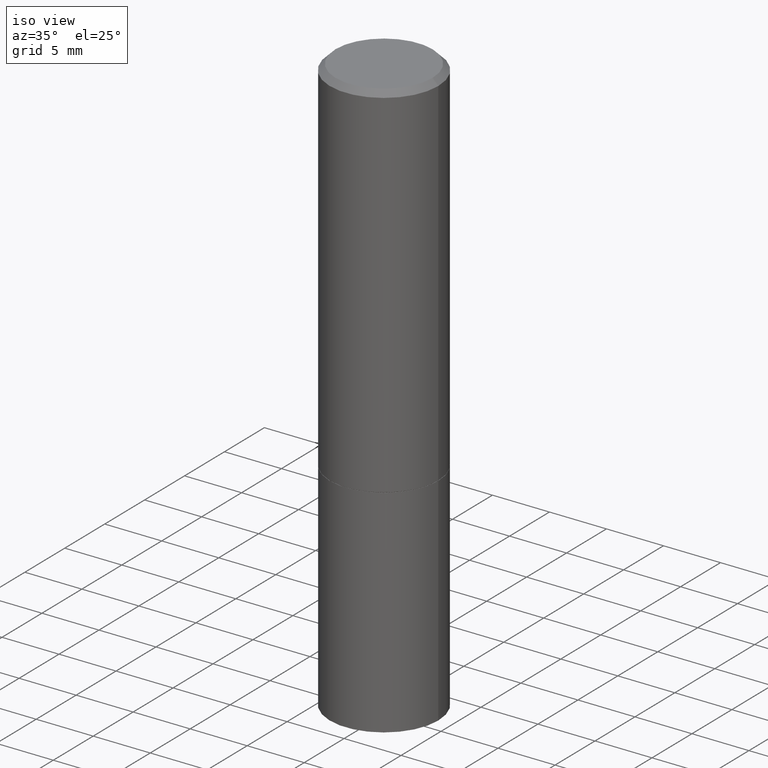
[diagram: clean part render]
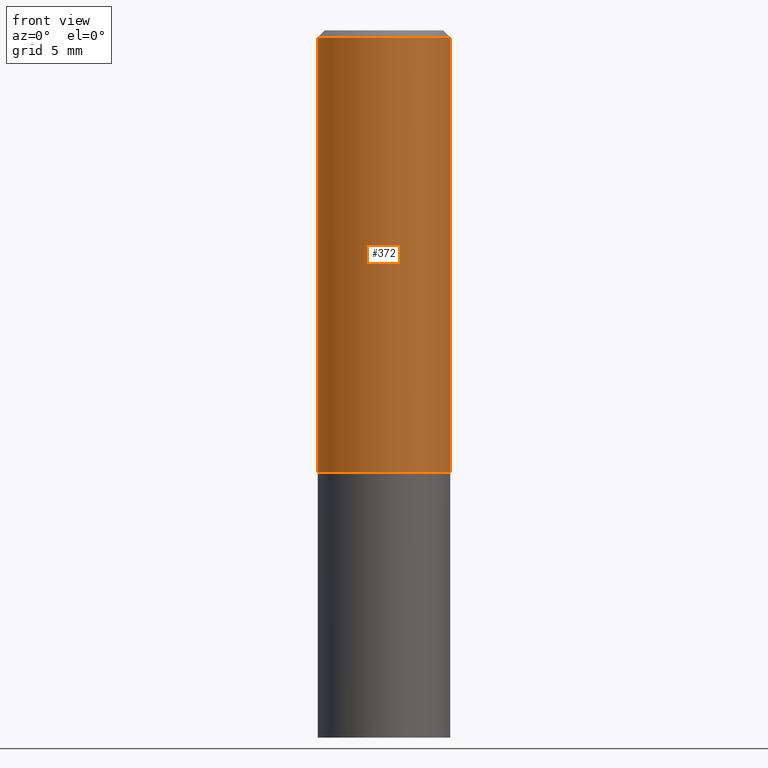
[diagram: tour spotlight — one face highlighted and labeled with its STEP entity id]
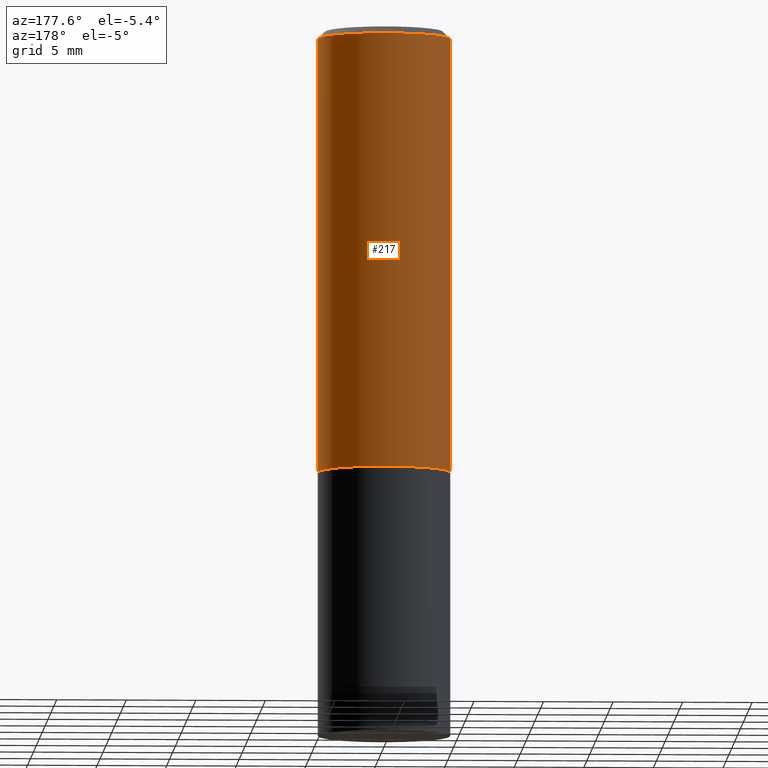
[diagram: tour spotlight — one face highlighted and labeled with its STEP entity id]
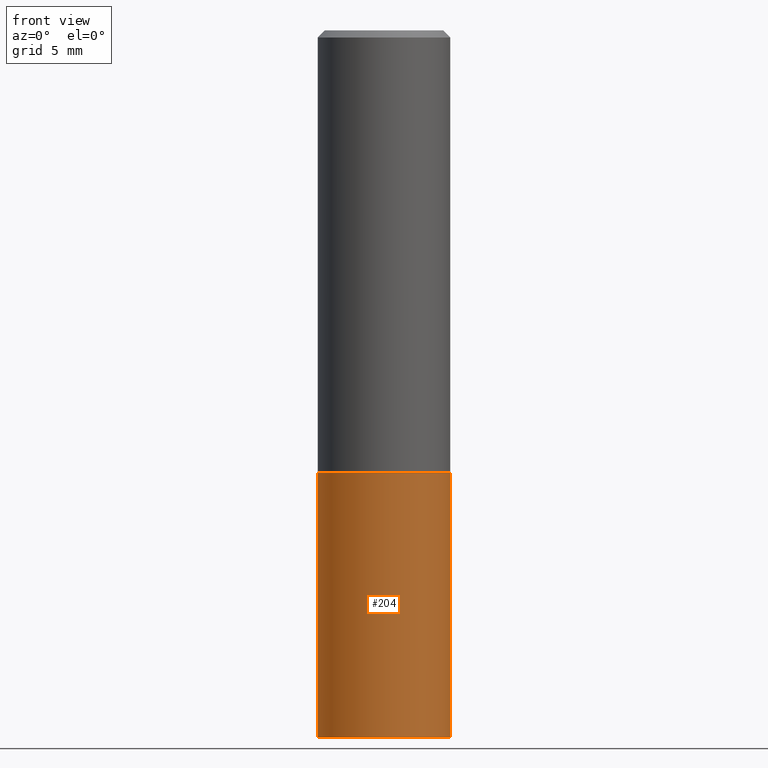
[diagram: tour spotlight — one face highlighted and labeled with its STEP entity id]
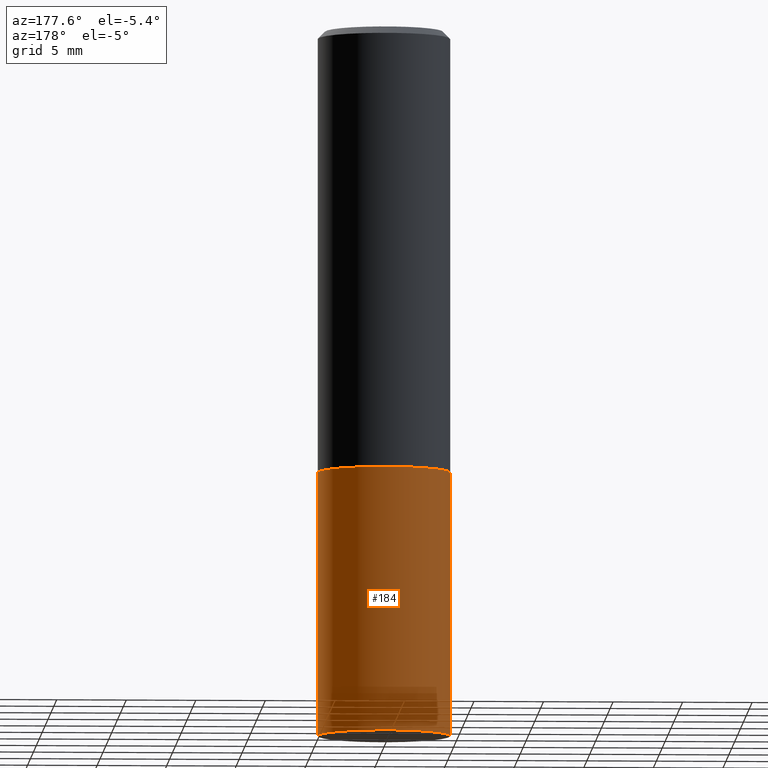
[diagram: tour spotlight — one face highlighted and labeled with its STEP entity id]
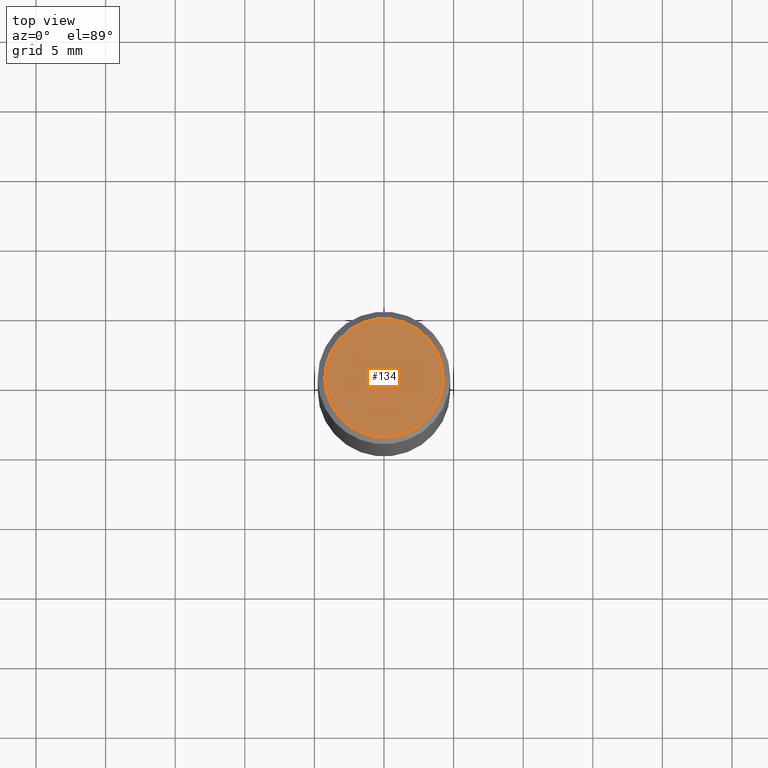
[diagram: tour spotlight — one face highlighted and labeled with its STEP entity id]
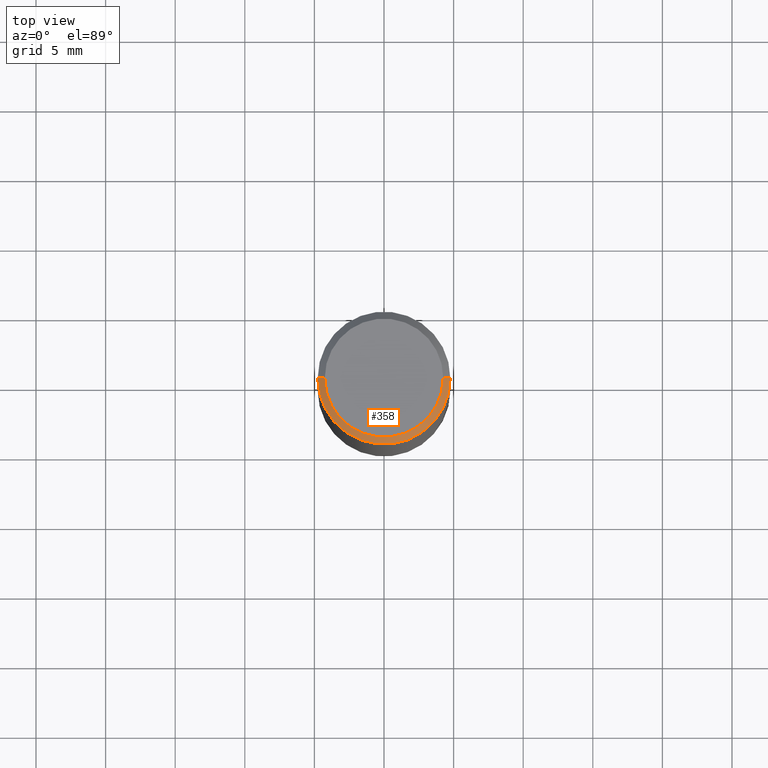
[diagram: tour spotlight — one face highlighted and labeled with its STEP entity id]
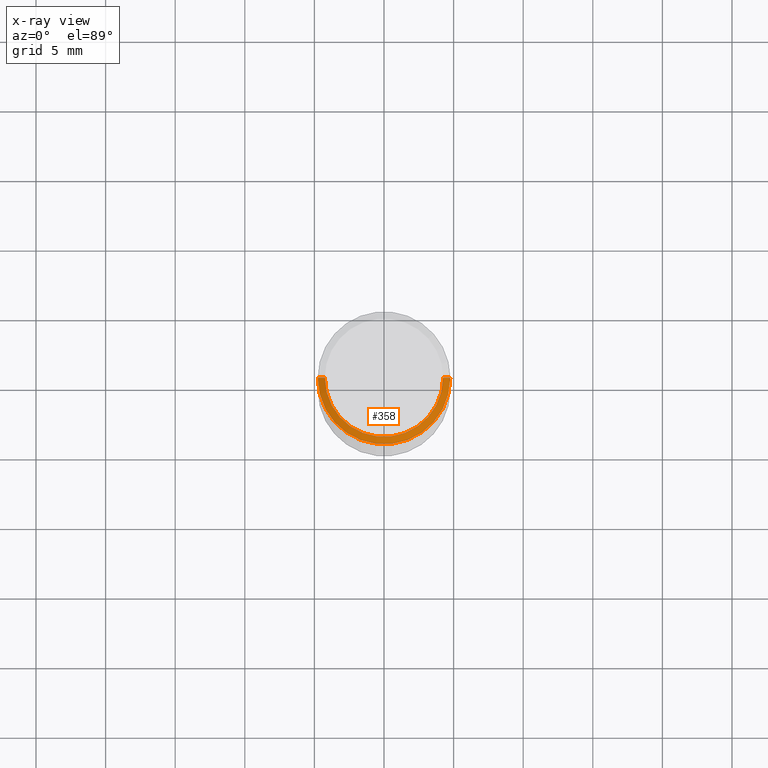
[diagram: x-ray of the same camera — body ghosted, this tour face saturated]
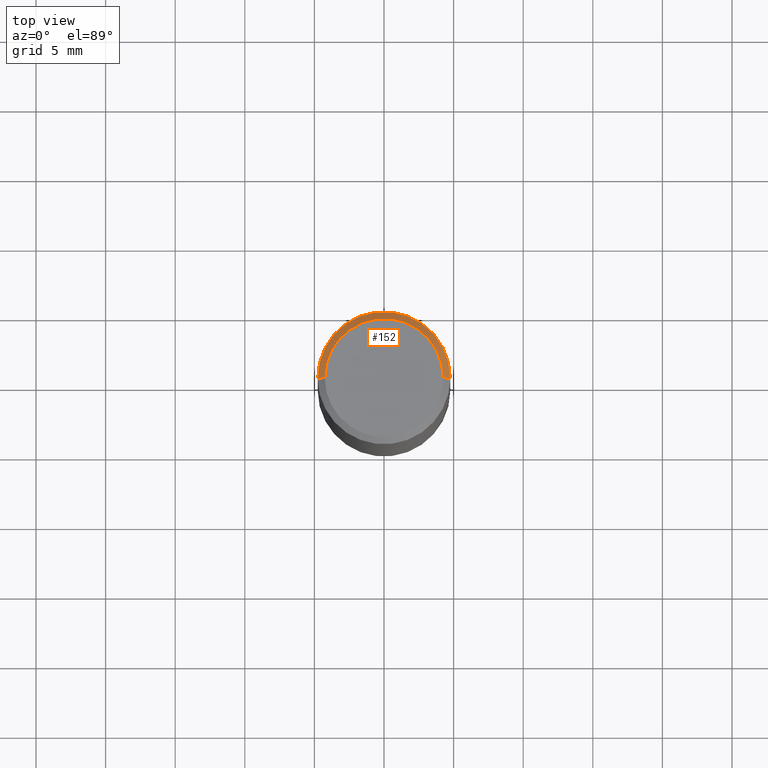
[diagram: tour spotlight — one face highlighted and labeled with its STEP entity id]
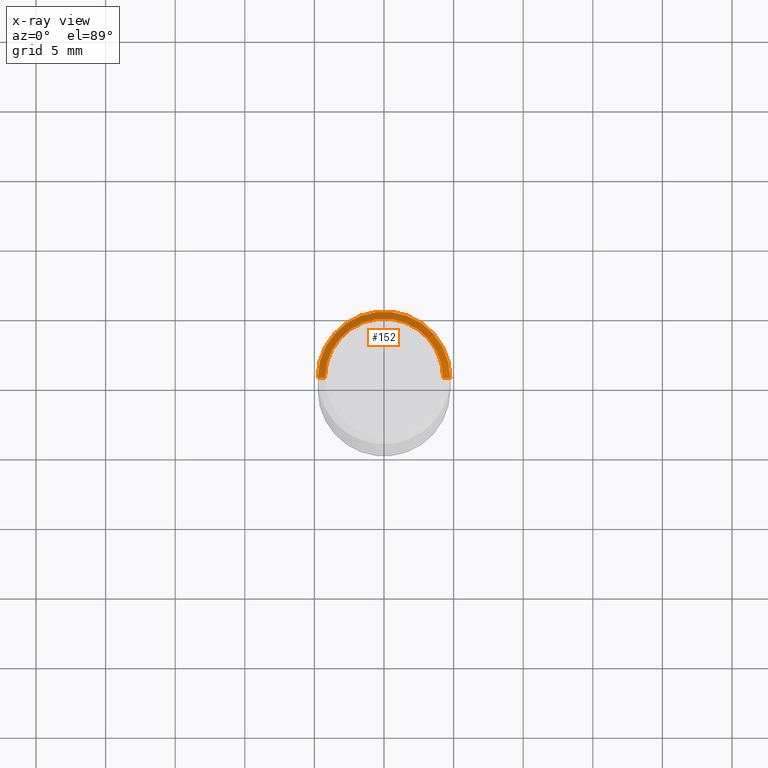
[diagram: x-ray of the same camera — body ghosted, this tour face saturated]
A machine part: a face-by-face anatomy tour. The part has 13 B-rep faces; the first image is the clean iso view, then the 7 largest visible faces are spotlighted one at a time (largest first), each with its STEP entity span.

Face 1 — front view, entity #372. In plain terms, the highlighted cylindrical surface (partial cylindrical patch) has radius 4.7625 mm, axis along (-0, 0, 1).
Definition (entity closure, byte-faithful):
#3 = DIRECTION ( 'NONE',  ( -2.445468806185136877E-29, 3.491481338843145188E-15, 1.000000000000000000 ) ) ;
#18 = VERTEX_POINT ( 'NONE', #325 ) ;
#19 = ORIENTED_EDGE ( 'NONE', *, *, #135, .T. ) ;
#50 = CYLINDRICAL_SURFACE ( 'NONE', #346, 0.1874999999999999722 ) ;
#52 = VERTEX_POINT ( 'NONE', #355 ) ;
#53 = EDGE_CURVE ( 'NONE', #226, #18, #216, .T. ) ;
#74 = FACE_OUTER_BOUND ( 'NONE', #308, .T. ) ;
#85 = EDGE_CURVE ( 'NONE', #18, #141, #166, .T. ) ;
#90 = VECTOR ( 'NONE', #3, 39.37007874015748143 ) ;
#96 = ORIENTED_EDGE ( 'NONE', *, *, #53, .F. ) ;
#97 = DIRECTION ( 'NONE',  ( -2.445468806185136597E-29, 3.491481338843145583E-15, 1.000000000000000000 ) ) ;
#135 = EDGE_CURVE ( 'NONE', #226, #52, #194, .T. ) ;
#141 = VERTEX_POINT ( 'NONE', #231 ) ;
#151 = AXIS2_PLACEMENT_3D ( 'NONE', #263, #97, #311 ) ;
#158 = CARTESIAN_POINT ( 'NONE',  ( 4.890937612370279289E-31, -6.982962677686299005E-17, -0.02000000000000002470 ) ) ;
#159 = CARTESIAN_POINT ( 'NONE',  ( -0.1875000000000000278, -8.865687612846302579E-16, -1.250999999999999890 ) ) ;
#166 = CIRCLE ( 'NONE', #390, 0.1874999999999999445 ) ;
#176 = CARTESIAN_POINT ( 'NONE',  ( -0.1874999999999999722, 1.332267629550187651E-15, -9.223003294227946589E-30 ) ) ;
#194 = CIRCLE ( 'NONE', #151, 0.1875000000000000278 ) ;
#196 = DIRECTION ( 'NONE',  ( -2.445468806185136597E-29, 3.491481338843145583E-15, 1.000000000000000000 ) ) ;
#210 = DIRECTION ( 'NONE',  ( 1.000000000000000000, -6.982962677686266711E-15, 4.876176775795935793E-29 ) ) ;
#216 = LINE ( 'NONE', #176, #354 ) ;
#226 = VERTEX_POINT ( 'NONE', #159 ) ;
#227 = CARTESIAN_POINT ( 'NONE',  ( 0.1874999999999999722, -1.309305502066174811E-15, 9.142831454617378210E-30 ) ) ;
#229 = LINE ( 'NONE', #227, #90 ) ;
#230 = EDGE_CURVE ( 'NONE', #52, #141, #229, .T. ) ;
#231 = CARTESIAN_POINT ( 'NONE',  ( 0.1874999999999999445, -1.356173001359024874E-15, -0.02000000000000002470 ) ) ;
#240 = DIRECTION ( 'NONE',  ( -2.445468806185136877E-29, 3.491481338843145188E-15, 1.000000000000000000 ) ) ;
#256 = ORIENTED_EDGE ( 'NONE', *, *, #230, .T. ) ;
#263 = CARTESIAN_POINT ( 'NONE',  ( 3.059281476537605228E-29, -4.367843154892774690E-15, -1.250999999999999890 ) ) ;
#267 = DIRECTION ( 'NONE',  ( -2.445468806185136597E-29, 3.491481338843145583E-15, 1.000000000000000000 ) ) ;
#280 = ORIENTED_EDGE ( 'NONE', *, *, #85, .F. ) ;
#284 = DIRECTION ( 'NONE',  ( 1.000000000000000000, -6.982962677686266711E-15, 0.000000000000000000 ) ) ;
#308 = EDGE_LOOP ( 'NONE', ( #96, #19, #256, #280 ) ) ;
#311 = DIRECTION ( 'NONE',  ( 1.000000000000000000, -6.982962677686266711E-15, 0.000000000000000000 ) ) ;
#324 = CARTESIAN_POINT ( 'NONE',  ( 0.000000000000000000, 0.000000000000000000, 0.000000000000000000 ) ) ;
#325 = CARTESIAN_POINT ( 'NONE',  ( -0.1874999999999999445, 1.239475875289311513E-15, -0.02000000000000002470 ) ) ;
#346 = AXIS2_PLACEMENT_3D ( 'NONE', #324, #267, #210 ) ;
#354 = VECTOR ( 'NONE', #240, 39.37007874015748143 ) ;
#355 = CARTESIAN_POINT ( 'NONE',  ( 0.1875000000000000278, -5.677148656958949698E-15, -1.250999999999999890 ) ) ;
#372 = ADVANCED_FACE ( 'NONE', ( #74 ), #50, .T. ) ;
#390 = AXIS2_PLACEMENT_3D ( 'NONE', #158, #196, #284 ) ;

Face 2 — auxiliary view, entity #217. In plain terms, the highlighted cylindrical surface (partial cylindrical patch) has radius 4.7625 mm, axis along (-0, 0, 1).
Definition (entity closure, byte-faithful):
#3 = DIRECTION ( 'NONE',  ( -2.445468806185136877E-29, 3.491481338843145188E-15, 1.000000000000000000 ) ) ;
#6 = CYLINDRICAL_SURFACE ( 'NONE', #44, 0.1874999999999999722 ) ;
#10 = DIRECTION ( 'NONE',  ( 1.000000000000000000, -6.982962677686266711E-15, 0.000000000000000000 ) ) ;
#18 = VERTEX_POINT ( 'NONE', #325 ) ;
#22 = EDGE_CURVE ( 'NONE', #52, #226, #81, .T. ) ;
#44 = AXIS2_PLACEMENT_3D ( 'NONE', #121, #91, #92 ) ;
#52 = VERTEX_POINT ( 'NONE', #355 ) ;
#53 = EDGE_CURVE ( 'NONE', #226, #18, #216, .T. ) ;
#65 = DIRECTION ( 'NONE',  ( -2.445468806185136597E-29, 3.491481338843145583E-15, 1.000000000000000000 ) ) ;
#81 = CIRCLE ( 'NONE', #128, 0.1875000000000000278 ) ;
#90 = VECTOR ( 'NONE', #3, 39.37007874015748143 ) ;
#91 = DIRECTION ( 'NONE',  ( -2.445468806185136597E-29, 3.491481338843145583E-15, 1.000000000000000000 ) ) ;
#92 = DIRECTION ( 'NONE',  ( 1.000000000000000000, -6.982962677686266711E-15, 4.876176775795935793E-29 ) ) ;
#94 = CIRCLE ( 'NONE', #369, 0.1874999999999999445 ) ;
#111 = CARTESIAN_POINT ( 'NONE',  ( 3.059281476537605228E-29, -4.367843154892774690E-15, -1.250999999999999890 ) ) ;
#120 = ORIENTED_EDGE ( 'NONE', *, *, #165, .F. ) ;
#121 = CARTESIAN_POINT ( 'NONE',  ( 0.000000000000000000, 0.000000000000000000, 0.000000000000000000 ) ) ;
#128 = AXIS2_PLACEMENT_3D ( 'NONE', #111, #235, #349 ) ;
#141 = VERTEX_POINT ( 'NONE', #231 ) ;
#159 = CARTESIAN_POINT ( 'NONE',  ( -0.1875000000000000278, -8.865687612846302579E-16, -1.250999999999999890 ) ) ;
#164 = CARTESIAN_POINT ( 'NONE',  ( 4.890937612370279289E-31, -6.982962677686299005E-17, -0.02000000000000002470 ) ) ;
#165 = EDGE_CURVE ( 'NONE', #141, #18, #94, .T. ) ;
#176 = CARTESIAN_POINT ( 'NONE',  ( -0.1874999999999999722, 1.332267629550187651E-15, -9.223003294227946589E-30 ) ) ;
#211 = ORIENTED_EDGE ( 'NONE', *, *, #22, .T. ) ;
#216 = LINE ( 'NONE', #176, #354 ) ;
#217 = ADVANCED_FACE ( 'NONE', ( #289 ), #6, .T. ) ;
#226 = VERTEX_POINT ( 'NONE', #159 ) ;
#227 = CARTESIAN_POINT ( 'NONE',  ( 0.1874999999999999722, -1.309305502066174811E-15, 9.142831454617378210E-30 ) ) ;
#229 = LINE ( 'NONE', #227, #90 ) ;
#230 = EDGE_CURVE ( 'NONE', #52, #141, #229, .T. ) ;
#231 = CARTESIAN_POINT ( 'NONE',  ( 0.1874999999999999445, -1.356173001359024874E-15, -0.02000000000000002470 ) ) ;
#235 = DIRECTION ( 'NONE',  ( -2.445468806185136597E-29, 3.491481338843145583E-15, 1.000000000000000000 ) ) ;
#240 = DIRECTION ( 'NONE',  ( -2.445468806185136877E-29, 3.491481338843145188E-15, 1.000000000000000000 ) ) ;
#272 = ORIENTED_EDGE ( 'NONE', *, *, #53, .T. ) ;
#289 = FACE_OUTER_BOUND ( 'NONE', #316, .T. ) ;
#316 = EDGE_LOOP ( 'NONE', ( #211, #272, #120, #347 ) ) ;
#325 = CARTESIAN_POINT ( 'NONE',  ( -0.1874999999999999445, 1.239475875289311513E-15, -0.02000000000000002470 ) ) ;
#347 = ORIENTED_EDGE ( 'NONE', *, *, #230, .F. ) ;
#349 = DIRECTION ( 'NONE',  ( 1.000000000000000000, -6.982962677686266711E-15, 0.000000000000000000 ) ) ;
#354 = VECTOR ( 'NONE', #240, 39.37007874015748143 ) ;
#355 = CARTESIAN_POINT ( 'NONE',  ( 0.1875000000000000278, -5.677148656958949698E-15, -1.250999999999999890 ) ) ;
#369 = AXIS2_PLACEMENT_3D ( 'NONE', #164, #65, #10 ) ;

Face 3 — front view, entity #204. In plain terms, the highlighted cylindrical surface (partial cylindrical patch) has radius 4.7625 mm, axis along (-0, 0, 1).
Definition (entity closure, byte-faithful):
#8 = FACE_OUTER_BOUND ( 'NONE', #37, .T. ) ;
#13 = VERTEX_POINT ( 'NONE', #357 ) ;
#21 = EDGE_CURVE ( 'NONE', #238, #13, #327, .T. ) ;
#37 = EDGE_LOOP ( 'NONE', ( #147, #382, #265, #140 ) ) ;
#38 = CARTESIAN_POINT ( 'NONE',  ( 0.000000000000000000, 0.000000000000000000, 0.000000000000000000 ) ) ;
#55 = CARTESIAN_POINT ( 'NONE',  ( 0.1875000000000000278, -1.309305502066175008E-15, 9.142831454617381013E-30 ) ) ;
#56 = DIRECTION ( 'NONE',  ( 1.000000000000000000, -6.982962677686266711E-15, 0.000000000000000000 ) ) ;
#62 = DIRECTION ( 'NONE',  ( -2.445468806185136597E-29, 3.491481338843145583E-15, 1.000000000000000000 ) ) ;
#64 = CARTESIAN_POINT ( 'NONE',  ( 4.890937612370273194E-29, -6.982962677686291165E-15, -2.000000000000000000 ) ) ;
#67 = DIRECTION ( 'NONE',  ( -2.445468806185136597E-29, 3.491481338843145583E-15, 1.000000000000000000 ) ) ;
#70 = VECTOR ( 'NONE', #386, 39.37007874015748143 ) ;
#76 = CARTESIAN_POINT ( 'NONE',  ( -0.1875000000000000278, -4.344881027408766582E-15, -1.252000000000000002 ) ) ;
#89 = AXIS2_PLACEMENT_3D ( 'NONE', #64, #62, #307 ) ;
#116 = CARTESIAN_POINT ( 'NONE',  ( -0.1875000000000000278, 1.332267629550188046E-15, -9.223003294227947991E-30 ) ) ;
#118 = CARTESIAN_POINT ( 'NONE',  ( 0.1875000000000009992, -8.269306052268460433E-15, -2.000000000000000000 ) ) ;
#122 = CIRCLE ( 'NONE', #190, 0.1875000000000000278 ) ;
#140 = ORIENTED_EDGE ( 'NONE', *, *, #305, .F. ) ;
#147 = ORIENTED_EDGE ( 'NONE', *, *, #274, .F. ) ;
#182 = DIRECTION ( 'NONE',  ( -2.445468806185136877E-29, 3.491481338843145188E-15, 1.000000000000000000 ) ) ;
#186 = VECTOR ( 'NONE', #182, 39.37007874015748143 ) ;
#190 = AXIS2_PLACEMENT_3D ( 'NONE', #221, #329, #56 ) ;
#204 = ADVANCED_FACE ( 'NONE', ( #8 ), #338, .T. ) ;
#206 = CARTESIAN_POINT ( 'NONE',  ( -0.1875000000000009992, -5.673657175620109846E-15, -2.000000000000000000 ) ) ;
#208 = VERTEX_POINT ( 'NONE', #206 ) ;
#220 = LINE ( 'NONE', #116, #70 ) ;
#221 = CARTESIAN_POINT ( 'NONE',  ( 3.061726945343790831E-29, -4.371334636231618486E-15, -1.252000000000000002 ) ) ;
#238 = VERTEX_POINT ( 'NONE', #118 ) ;
#253 = EDGE_CURVE ( 'NONE', #208, #238, #277, .T. ) ;
#257 = DIRECTION ( 'NONE',  ( 1.000000000000000000, -6.982962677686265922E-15, 4.876176775795935793E-29 ) ) ;
#258 = AXIS2_PLACEMENT_3D ( 'NONE', #38, #67, #257 ) ;
#265 = ORIENTED_EDGE ( 'NONE', *, *, #21, .T. ) ;
#274 = EDGE_CURVE ( 'NONE', #208, #363, #220, .T. ) ;
#277 = CIRCLE ( 'NONE', #89, 0.1875000000000000278 ) ;
#305 = EDGE_CURVE ( 'NONE', #363, #13, #122, .T. ) ;
#307 = DIRECTION ( 'NONE',  ( 1.000000000000000000, -6.982962677686266711E-15, 0.000000000000000000 ) ) ;
#327 = LINE ( 'NONE', #55, #186 ) ;
#329 = DIRECTION ( 'NONE',  ( -2.445468806185136597E-29, 3.491481338843145583E-15, 1.000000000000000000 ) ) ;
#338 = CYLINDRICAL_SURFACE ( 'NONE', #258, 0.1875000000000000278 ) ;
#357 = CARTESIAN_POINT ( 'NONE',  ( 0.1875000000000000278, -5.680640138297793494E-15, -1.252000000000000002 ) ) ;
#363 = VERTEX_POINT ( 'NONE', #76 ) ;
#382 = ORIENTED_EDGE ( 'NONE', *, *, #253, .T. ) ;
#386 = DIRECTION ( 'NONE',  ( -2.445468806185136877E-29, 3.491481338843145188E-15, 1.000000000000000000 ) ) ;

Face 4 — auxiliary view, entity #184. In plain terms, the highlighted cylindrical surface (partial cylindrical patch) has radius 4.7625 mm, axis along (-0, 0, 1).
Definition (entity closure, byte-faithful):
#13 = VERTEX_POINT ( 'NONE', #357 ) ;
#14 = AXIS2_PLACEMENT_3D ( 'NONE', #345, #205, #157 ) ;
#21 = EDGE_CURVE ( 'NONE', #238, #13, #327, .T. ) ;
#55 = CARTESIAN_POINT ( 'NONE',  ( 0.1875000000000000278, -1.309305502066175008E-15, 9.142831454617381013E-30 ) ) ;
#61 = CIRCLE ( 'NONE', #114, 0.1875000000000000278 ) ;
#70 = VECTOR ( 'NONE', #386, 39.37007874015748143 ) ;
#71 = ORIENTED_EDGE ( 'NONE', *, *, #243, .T. ) ;
#76 = CARTESIAN_POINT ( 'NONE',  ( -0.1875000000000000278, -4.344881027408766582E-15, -1.252000000000000002 ) ) ;
#114 = AXIS2_PLACEMENT_3D ( 'NONE', #313, #124, #170 ) ;
#116 = CARTESIAN_POINT ( 'NONE',  ( -0.1875000000000000278, 1.332267629550188046E-15, -9.223003294227947991E-30 ) ) ;
#118 = CARTESIAN_POINT ( 'NONE',  ( 0.1875000000000009992, -8.269306052268460433E-15, -2.000000000000000000 ) ) ;
#124 = DIRECTION ( 'NONE',  ( -2.445468806185136597E-29, 3.491481338843145583E-15, 1.000000000000000000 ) ) ;
#143 = EDGE_LOOP ( 'NONE', ( #71, #370, #161, #175 ) ) ;
#157 = DIRECTION ( 'NONE',  ( 1.000000000000000000, -6.982962677686265922E-15, 4.876176775795935793E-29 ) ) ;
#161 = ORIENTED_EDGE ( 'NONE', *, *, #219, .F. ) ;
#170 = DIRECTION ( 'NONE',  ( 1.000000000000000000, -6.982962677686266711E-15, 0.000000000000000000 ) ) ;
#175 = ORIENTED_EDGE ( 'NONE', *, *, #21, .F. ) ;
#182 = DIRECTION ( 'NONE',  ( -2.445468806185136877E-29, 3.491481338843145188E-15, 1.000000000000000000 ) ) ;
#184 = ADVANCED_FACE ( 'NONE', ( #373 ), #310, .T. ) ;
#186 = VECTOR ( 'NONE', #182, 39.37007874015748143 ) ;
#205 = DIRECTION ( 'NONE',  ( -2.445468806185136597E-29, 3.491481338843145583E-15, 1.000000000000000000 ) ) ;
#206 = CARTESIAN_POINT ( 'NONE',  ( -0.1875000000000009992, -5.673657175620109846E-15, -2.000000000000000000 ) ) ;
#208 = VERTEX_POINT ( 'NONE', #206 ) ;
#219 = EDGE_CURVE ( 'NONE', #13, #363, #61, .T. ) ;
#220 = LINE ( 'NONE', #116, #70 ) ;
#228 = DIRECTION ( 'NONE',  ( 1.000000000000000000, -6.982962677686266711E-15, 0.000000000000000000 ) ) ;
#238 = VERTEX_POINT ( 'NONE', #118 ) ;
#243 = EDGE_CURVE ( 'NONE', #238, #208, #317, .T. ) ;
#274 = EDGE_CURVE ( 'NONE', #208, #363, #220, .T. ) ;
#310 = CYLINDRICAL_SURFACE ( 'NONE', #14, 0.1875000000000000278 ) ;
#313 = CARTESIAN_POINT ( 'NONE',  ( 3.061726945343790831E-29, -4.371334636231618486E-15, -1.252000000000000002 ) ) ;
#317 = CIRCLE ( 'NONE', #366, 0.1875000000000000278 ) ;
#327 = LINE ( 'NONE', #55, #186 ) ;
#345 = CARTESIAN_POINT ( 'NONE',  ( 0.000000000000000000, 0.000000000000000000, 0.000000000000000000 ) ) ;
#357 = CARTESIAN_POINT ( 'NONE',  ( 0.1875000000000000278, -5.680640138297793494E-15, -1.252000000000000002 ) ) ;
#363 = VERTEX_POINT ( 'NONE', #76 ) ;
#364 = CARTESIAN_POINT ( 'NONE',  ( 4.890937612370273194E-29, -6.982962677686291165E-15, -2.000000000000000000 ) ) ;
#366 = AXIS2_PLACEMENT_3D ( 'NONE', #364, #368, #228 ) ;
#368 = DIRECTION ( 'NONE',  ( -2.445468806185136597E-29, 3.491481338843145583E-15, 1.000000000000000000 ) ) ;
#370 = ORIENTED_EDGE ( 'NONE', *, *, #274, .T. ) ;
#373 = FACE_OUTER_BOUND ( 'NONE', #143, .T. ) ;
#386 = DIRECTION ( 'NONE',  ( -2.445468806185136877E-29, 3.491481338843145188E-15, 1.000000000000000000 ) ) ;

Face 5 — top view, entity #134. In plain terms, the highlighted planar face has unit normal (0, -0, -1).
Definition (entity closure, byte-faithful):
#11 = DIRECTION ( 'NONE',  ( 2.438088387897960049E-29, -3.491481338843145188E-15, -1.000000000000000000 ) ) ;
#34 = DIRECTION ( 'NONE',  ( -2.445468806185136597E-29, 3.491481338843145583E-15, 1.000000000000000000 ) ) ;
#72 = AXIS2_PLACEMENT_3D ( 'NONE', #139, #271, #297 ) ;
#84 = EDGE_CURVE ( 'NONE', #113, #103, #340, .T. ) ;
#86 = CARTESIAN_POINT ( 'NONE',  ( -0.1674999999999999822, 1.204561061900880455E-15, -8.301862719484110388E-30 ) ) ;
#98 = CIRCLE ( 'NONE', #72, 0.1674999999999999822 ) ;
#103 = VERTEX_POINT ( 'NONE', #86 ) ;
#108 = ORIENTED_EDGE ( 'NONE', *, *, #315, .T. ) ;
#113 = VERTEX_POINT ( 'NONE', #127 ) ;
#127 = CARTESIAN_POINT ( 'NONE',  ( 0.1674999999999999822, -1.252653207992878091E-15, 8.469775550109239385E-30 ) ) ;
#132 = FACE_OUTER_BOUND ( 'NONE', #351, .T. ) ;
#134 = ADVANCED_FACE ( 'NONE', ( #132 ), #203, .F. ) ;
#139 = CARTESIAN_POINT ( 'NONE',  ( 0.000000000000000000, 0.000000000000000000, 0.000000000000000000 ) ) ;
#172 = ORIENTED_EDGE ( 'NONE', *, *, #84, .T. ) ;
#180 = AXIS2_PLACEMENT_3D ( 'NONE', #199, #34, #224 ) ;
#199 = CARTESIAN_POINT ( 'NONE',  ( 0.000000000000000000, 0.000000000000000000, 0.000000000000000000 ) ) ;
#203 = PLANE ( 'NONE',  #261 ) ;
#224 = DIRECTION ( 'NONE',  ( 1.000000000000000000, -6.982962677686266711E-15, 4.876176775795935232E-29 ) ) ;
#225 = CARTESIAN_POINT ( 'NONE',  ( 1.169646248512449595E-15, 0.1674999999999999822, -5.848231242562268683E-16 ) ) ;
#261 = AXIS2_PLACEMENT_3D ( 'NONE', #225, #11, #371 ) ;
#271 = DIRECTION ( 'NONE',  ( -2.445468806185136597E-29, 3.491481338843145583E-15, 1.000000000000000000 ) ) ;
#297 = DIRECTION ( 'NONE',  ( 1.000000000000000000, -6.982962677686266711E-15, 4.876176775795935232E-29 ) ) ;
#315 = EDGE_CURVE ( 'NONE', #103, #113, #98, .T. ) ;
#340 = CIRCLE ( 'NONE', #180, 0.1674999999999999822 ) ;
#351 = EDGE_LOOP ( 'NONE', ( #108, #172 ) ) ;
#371 = DIRECTION ( 'NONE',  ( -1.000000000000000000, 6.982962677686265922E-15, -4.876176775795935793E-29 ) ) ;

Face 6 — top view, entity #358. An x-ray twin of the same camera follows (body ghosted, this face saturated) — the face is partly hidden behind the body. In plain terms, the highlighted conical surface has half-angle 45 deg.
Definition (entity closure, byte-faithful):
#18 = VERTEX_POINT ( 'NONE', #325 ) ;
#20 = CARTESIAN_POINT ( 'NONE',  ( 4.890937612370279289E-31, -6.982962677686299005E-17, -0.02000000000000002470 ) ) ;
#28 = EDGE_CURVE ( 'NONE', #103, #18, #379, .T. ) ;
#54 = ORIENTED_EDGE ( 'NONE', *, *, #314, .F. ) ;
#72 = AXIS2_PLACEMENT_3D ( 'NONE', #139, #271, #297 ) ;
#78 = CARTESIAN_POINT ( 'NONE',  ( -0.1874999999999999445, 1.239475875289311513E-15, -0.02000000000000002470 ) ) ;
#85 = EDGE_CURVE ( 'NONE', #18, #141, #166, .T. ) ;
#86 = CARTESIAN_POINT ( 'NONE',  ( -0.1674999999999999822, 1.204561061900880455E-15, -8.301862719484110388E-30 ) ) ;
#98 = CIRCLE ( 'NONE', #72, 0.1674999999999999822 ) ;
#103 = VERTEX_POINT ( 'NONE', #86 ) ;
#113 = VERTEX_POINT ( 'NONE', #127 ) ;
#127 = CARTESIAN_POINT ( 'NONE',  ( 0.1674999999999999822, -1.252653207992878091E-15, 8.469775550109239385E-30 ) ) ;
#129 = AXIS2_PLACEMENT_3D ( 'NONE', #20, #312, #144 ) ;
#137 = ORIENTED_EDGE ( 'NONE', *, *, #28, .T. ) ;
#139 = CARTESIAN_POINT ( 'NONE',  ( 0.000000000000000000, 0.000000000000000000, 0.000000000000000000 ) ) ;
#141 = VERTEX_POINT ( 'NONE', #231 ) ;
#144 = DIRECTION ( 'NONE',  ( -1.000000000000000000, 6.982962677686266711E-15, 0.000000000000000000 ) ) ;
#149 = VECTOR ( 'NONE', #247, 39.37007874015748854 ) ;
#158 = CARTESIAN_POINT ( 'NONE',  ( 4.890937612370279289E-31, -6.982962677686299005E-17, -0.02000000000000002470 ) ) ;
#166 = CIRCLE ( 'NONE', #390, 0.1874999999999999445 ) ;
#171 = FACE_OUTER_BOUND ( 'NONE', #377, .T. ) ;
#188 = LINE ( 'NONE', #300, #149 ) ;
#196 = DIRECTION ( 'NONE',  ( -2.445468806185136597E-29, 3.491481338843145583E-15, 1.000000000000000000 ) ) ;
#209 = DIRECTION ( 'NONE',  ( -0.7071067811865462405, 2.468850131082243650E-15, -0.7071067811865486830 ) ) ;
#231 = CARTESIAN_POINT ( 'NONE',  ( 0.1874999999999999445, -1.356173001359024874E-15, -0.02000000000000002470 ) ) ;
#247 = DIRECTION ( 'NONE',  ( 0.7071067811865462405, -7.319954787623251312E-15, -0.7071067811865486830 ) ) ;
#260 = ORIENTED_EDGE ( 'NONE', *, *, #85, .T. ) ;
#271 = DIRECTION ( 'NONE',  ( -2.445468806185136597E-29, 3.491481338843145583E-15, 1.000000000000000000 ) ) ;
#284 = DIRECTION ( 'NONE',  ( 1.000000000000000000, -6.982962677686266711E-15, 0.000000000000000000 ) ) ;
#297 = DIRECTION ( 'NONE',  ( 1.000000000000000000, -6.982962677686266711E-15, 4.876176775795935232E-29 ) ) ;
#299 = CONICAL_SURFACE ( 'NONE', #129, 0.1874999999999999445, 0.7853981633974466137 ) ;
#300 = CARTESIAN_POINT ( 'NONE',  ( 0.1874999999999999445, -1.356173001359024874E-15, -0.02000000000000002470 ) ) ;
#312 = DIRECTION ( 'NONE',  ( 2.445468806185136597E-29, -3.491481338843145583E-15, -1.000000000000000000 ) ) ;
#314 = EDGE_CURVE ( 'NONE', #113, #141, #188, .T. ) ;
#315 = EDGE_CURVE ( 'NONE', #103, #113, #98, .T. ) ;
#325 = CARTESIAN_POINT ( 'NONE',  ( -0.1874999999999999445, 1.239475875289311513E-15, -0.02000000000000002470 ) ) ;
#358 = ADVANCED_FACE ( 'NONE', ( #171 ), #299, .T. ) ;
#374 = ORIENTED_EDGE ( 'NONE', *, *, #315, .F. ) ;
#376 = VECTOR ( 'NONE', #209, 39.37007874015748854 ) ;
#377 = EDGE_LOOP ( 'NONE', ( #54, #374, #137, #260 ) ) ;
#379 = LINE ( 'NONE', #78, #376 ) ;
#390 = AXIS2_PLACEMENT_3D ( 'NONE', #158, #196, #284 ) ;

Face 7 — top view, entity #152. An x-ray twin of the same camera follows (body ghosted, this face saturated) — the face is partly hidden behind the body. In plain terms, the highlighted conical surface has half-angle 45 deg.
Definition (entity closure, byte-faithful):
#10 = DIRECTION ( 'NONE',  ( 1.000000000000000000, -6.982962677686266711E-15, 0.000000000000000000 ) ) ;
#18 = VERTEX_POINT ( 'NONE', #325 ) ;
#28 = EDGE_CURVE ( 'NONE', #103, #18, #379, .T. ) ;
#34 = DIRECTION ( 'NONE',  ( -2.445468806185136597E-29, 3.491481338843145583E-15, 1.000000000000000000 ) ) ;
#35 = ORIENTED_EDGE ( 'NONE', *, *, #84, .F. ) ;
#65 = DIRECTION ( 'NONE',  ( -2.445468806185136597E-29, 3.491481338843145583E-15, 1.000000000000000000 ) ) ;
#78 = CARTESIAN_POINT ( 'NONE',  ( -0.1874999999999999445, 1.239475875289311513E-15, -0.02000000000000002470 ) ) ;
#84 = EDGE_CURVE ( 'NONE', #113, #103, #340, .T. ) ;
#86 = CARTESIAN_POINT ( 'NONE',  ( -0.1674999999999999822, 1.204561061900880455E-15, -8.301862719484110388E-30 ) ) ;
#94 = CIRCLE ( 'NONE', #369, 0.1874999999999999445 ) ;
#99 = DIRECTION ( 'NONE',  ( -1.000000000000000000, 6.982962677686266711E-15, 0.000000000000000000 ) ) ;
#103 = VERTEX_POINT ( 'NONE', #86 ) ;
#104 = ORIENTED_EDGE ( 'NONE', *, *, #165, .T. ) ;
#113 = VERTEX_POINT ( 'NONE', #127 ) ;
#126 = ORIENTED_EDGE ( 'NONE', *, *, #28, .F. ) ;
#127 = CARTESIAN_POINT ( 'NONE',  ( 0.1674999999999999822, -1.252653207992878091E-15, 8.469775550109239385E-30 ) ) ;
#141 = VERTEX_POINT ( 'NONE', #231 ) ;
#149 = VECTOR ( 'NONE', #247, 39.37007874015748854 ) ;
#152 = ADVANCED_FACE ( 'NONE', ( #309 ), #303, .T. ) ;
#164 = CARTESIAN_POINT ( 'NONE',  ( 4.890937612370279289E-31, -6.982962677686299005E-17, -0.02000000000000002470 ) ) ;
#165 = EDGE_CURVE ( 'NONE', #141, #18, #94, .T. ) ;
#180 = AXIS2_PLACEMENT_3D ( 'NONE', #199, #34, #224 ) ;
#188 = LINE ( 'NONE', #300, #149 ) ;
#199 = CARTESIAN_POINT ( 'NONE',  ( 0.000000000000000000, 0.000000000000000000, 0.000000000000000000 ) ) ;
#209 = DIRECTION ( 'NONE',  ( -0.7071067811865462405, 2.468850131082243650E-15, -0.7071067811865486830 ) ) ;
#215 = AXIS2_PLACEMENT_3D ( 'NONE', #286, #285, #99 ) ;
#224 = DIRECTION ( 'NONE',  ( 1.000000000000000000, -6.982962677686266711E-15, 4.876176775795935232E-29 ) ) ;
#231 = CARTESIAN_POINT ( 'NONE',  ( 0.1874999999999999445, -1.356173001359024874E-15, -0.02000000000000002470 ) ) ;
#247 = DIRECTION ( 'NONE',  ( 0.7071067811865462405, -7.319954787623251312E-15, -0.7071067811865486830 ) ) ;
#285 = DIRECTION ( 'NONE',  ( 2.445468806185136597E-29, -3.491481338843145583E-15, -1.000000000000000000 ) ) ;
#286 = CARTESIAN_POINT ( 'NONE',  ( 4.890937612370279289E-31, -6.982962677686299005E-17, -0.02000000000000002470 ) ) ;
#294 = EDGE_LOOP ( 'NONE', ( #35, #378, #104, #126 ) ) ;
#300 = CARTESIAN_POINT ( 'NONE',  ( 0.1874999999999999445, -1.356173001359024874E-15, -0.02000000000000002470 ) ) ;
#303 = CONICAL_SURFACE ( 'NONE', #215, 0.1874999999999999445, 0.7853981633974466137 ) ;
#309 = FACE_OUTER_BOUND ( 'NONE', #294, .T. ) ;
#314 = EDGE_CURVE ( 'NONE', #113, #141, #188, .T. ) ;
#325 = CARTESIAN_POINT ( 'NONE',  ( -0.1874999999999999445, 1.239475875289311513E-15, -0.02000000000000002470 ) ) ;
#340 = CIRCLE ( 'NONE', #180, 0.1674999999999999822 ) ;
#369 = AXIS2_PLACEMENT_3D ( 'NONE', #164, #65, #10 ) ;
#376 = VECTOR ( 'NONE', #209, 39.37007874015748854 ) ;
#378 = ORIENTED_EDGE ( 'NONE', *, *, #314, .T. ) ;
#379 = LINE ( 'NONE', #78, #376 ) ;